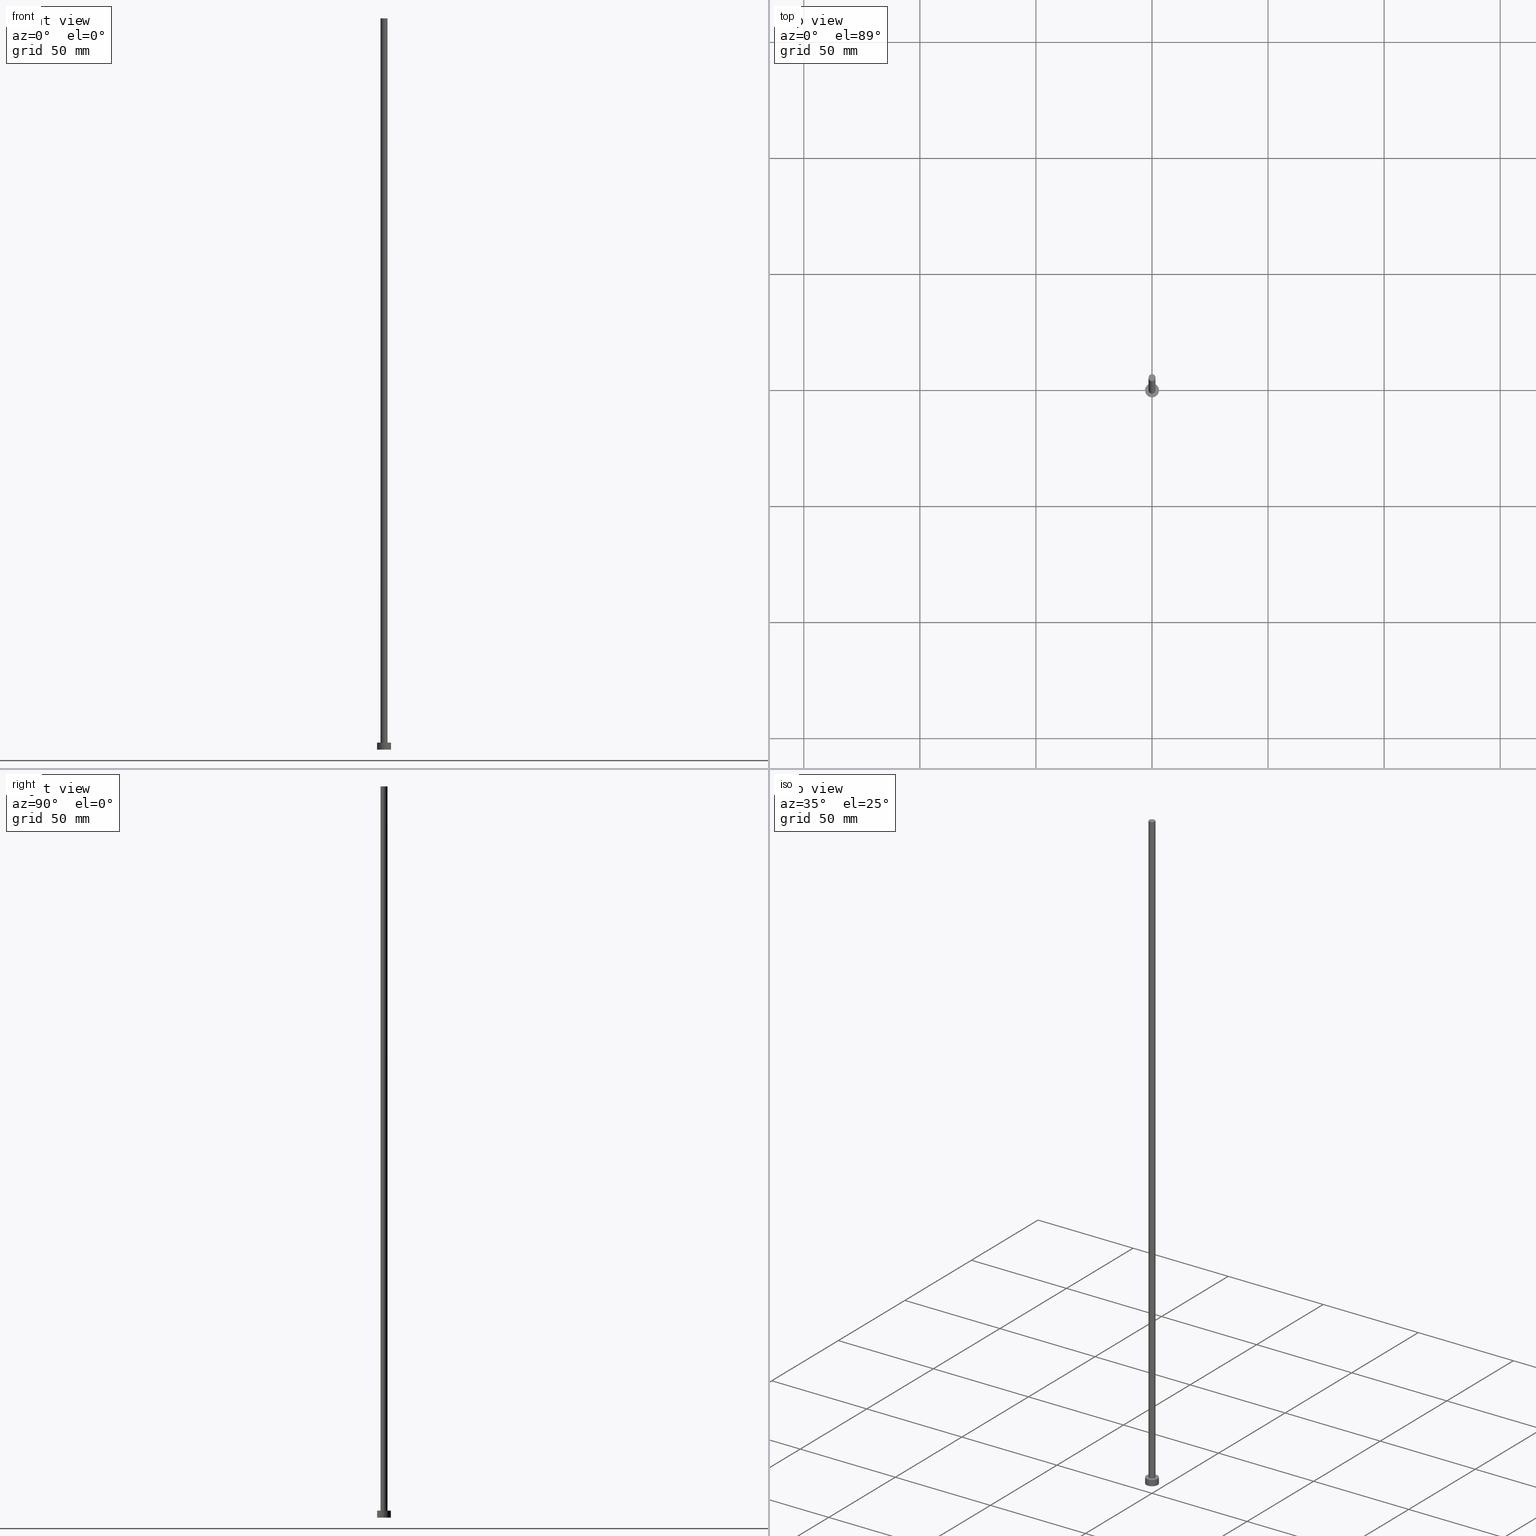
[diagram: canonical four-view strip — front | top / right | iso, engineering-drawing reading convention]
A machine part, canonical four-view strip (front | top / right | iso — engineering-drawing reading convention). The complete STEP part file that produces these views, byte-faithful:
ISO-10303-21;
HEADER;
FILE_DESCRIPTION (( 'STEP AP203' ),
    '1' );
FILE_NAME ('9875.STEP',
    '2023-02-13T15:37:10',
    ( '' ),
    ( '' ),
    'SwSTEP 2.0',
    'SolidWorks 2019',
    '' );
FILE_SCHEMA (( 'CONFIG_CONTROL_DESIGN' ));
ENDSEC;

DATA;
#1 = APPROVAL_STATUS ( 'not_yet_approved' ) ;
#2 = VERTEX_POINT ( 'NONE', #97 ) ;
#3 = DATE_AND_TIME ( #170, #116 ) ;
#4 = EDGE_LOOP ( 'NONE', ( #154, #193, #153, #115 ) ) ;
#5 = CC_DESIGN_PERSON_AND_ORGANIZATION_ASSIGNMENT ( #28, #25, ( #227 ) ) ;
#6 = CARTESIAN_POINT ( 'NONE',  ( -1.500000000000000222, 0.000000000000000000, 3.000000000000000000 ) ) ;
#7 = AXIS2_PLACEMENT_3D ( 'NONE', #183, #66, #200 ) ;
#8 = LOCAL_TIME ( 16, 37, 10.00000000000000000, #229 ) ;
#9 = DIRECTION ( 'NONE',  ( -1.000000000000000000, 0.000000000000000000, 0.000000000000000000 ) ) ;
#10 = CARTESIAN_POINT ( 'NONE',  ( 0.000000000000000000, 0.000000000000000000, 3.000000000000000000 ) ) ;
#11 = CIRCLE ( 'NONE', #149, 1.500000000000000222 ) ;
#12 = CARTESIAN_POINT ( 'NONE',  ( 3.000000000000000444, 3.673940397442060361E-16, 3.000000000000000000 ) ) ;
#13 = DIRECTION ( 'NONE',  ( -0.000000000000000000, -0.000000000000000000, -1.000000000000000000 ) ) ;
#14 = LINE ( 'NONE', #206, #217 ) ;
#15 =( NAMED_UNIT ( * ) PLANE_ANGLE_UNIT ( ) SI_UNIT ( $, .RADIAN. ) );
#16 = ORIENTED_EDGE ( 'NONE', *, *, #196, .F. ) ;
#17 = PLANE ( 'NONE',  #42 ) ;
#18 = ORIENTED_EDGE ( 'NONE', *, *, #241, .F. ) ;
#19 = ADVANCED_FACE ( 'NONE', ( #221 ), #79, .T. ) ;
#20 = DIRECTION ( 'NONE',  ( 1.000000000000000000, 0.000000000000000000, 0.000000000000000000 ) ) ;
#21 = CARTESIAN_POINT ( 'NONE',  ( -1.500000000000000222, 0.000000000000000000, 315.0000000000000000 ) ) ;
#22 = AXIS2_PLACEMENT_3D ( 'NONE', #50, #223, #103 ) ;
#23 = EDGE_CURVE ( 'NONE', #45, #208, #11, .T. ) ;
#24 = ORIENTED_EDGE ( 'NONE', *, *, #253, .T. ) ;
#25 = PERSON_AND_ORGANIZATION_ROLE ( 'creator' ) ;
#26 = SHAPE_DEFINITION_REPRESENTATION ( #109, #90 ) ;
#27 = VERTEX_POINT ( 'NONE', #201 ) ;
#28 = PERSON_AND_ORGANIZATION ( #86, #43 ) ;
#29 = CC_DESIGN_DATE_AND_TIME_ASSIGNMENT ( #127, #184, ( #222 ) ) ;
#30 = CARTESIAN_POINT ( 'NONE',  ( 0.000000000000000000, 0.000000000000000000, 315.0000000000000000 ) ) ;
#31 =( GEOMETRIC_REPRESENTATION_CONTEXT ( 3 ) GLOBAL_UNCERTAINTY_ASSIGNED_CONTEXT ( ( #244 ) ) GLOBAL_UNIT_ASSIGNED_CONTEXT ( ( #189, #15, #251 ) ) REPRESENTATION_CONTEXT ( 'NONE', 'WORKASPACE' ) );
#32 = FACE_OUTER_BOUND ( 'NONE', #96, .T. ) ;
#33 = DIRECTION ( 'NONE',  ( 1.000000000000000000, 0.000000000000000000, 0.000000000000000000 ) ) ;
#34 = FACE_OUTER_BOUND ( 'NONE', #71, .T. ) ;
#35 = FACE_OUTER_BOUND ( 'NONE', #137, .T. ) ;
#36 = EDGE_CURVE ( 'NONE', #95, #2, #181, .T. ) ;
#37 = CALENDAR_DATE ( 2023, 13, 2 ) ;
#38 = EDGE_LOOP ( 'NONE', ( #252, #24, #238, #177 ) ) ;
#39 = DIRECTION ( 'NONE',  ( 0.000000000000000000, 0.000000000000000000, 1.000000000000000000 ) ) ;
#40 = AXIS2_PLACEMENT_3D ( 'NONE', #119, #106, #69 ) ;
#41 = CIRCLE ( 'NONE', #169, 1.500000000000000222 ) ;
#42 = AXIS2_PLACEMENT_3D ( 'NONE', #112, #75, #70 ) ;
#43 = ORGANIZATION ( 'NEUR�EN�', 'NEUR�EN�', '' ) ;
#44 = ORIENTED_EDGE ( 'NONE', *, *, #82, .F. ) ;
#45 = VERTEX_POINT ( 'NONE', #6 ) ;
#46 = ADVANCED_FACE ( 'NONE', ( #35 ), #139, .T. ) ;
#47 = EDGE_CURVE ( 'NONE', #2, #131, #52, .T. ) ;
#48 = AXIS2_PLACEMENT_3D ( 'NONE', #219, #142, #9 ) ;
#49 = LOCAL_TIME ( 16, 37, 10.00000000000000000, #65 ) ;
#50 = CARTESIAN_POINT ( 'NONE',  ( 0.000000000000000000, 0.000000000000000000, 3.000000000000000000 ) ) ;
#51 = CARTESIAN_POINT ( 'NONE',  ( 0.000000000000000000, 0.000000000000000000, 3.000000000000000000 ) ) ;
#52 = LINE ( 'NONE', #162, #161 ) ;
#53 = CARTESIAN_POINT ( 'NONE',  ( 0.000000000000000000, 0.000000000000000000, 315.0000000000000000 ) ) ;
#54 = DIRECTION ( 'NONE',  ( -1.000000000000000000, 0.000000000000000000, 0.000000000000000000 ) ) ;
#55 = CC_DESIGN_PERSON_AND_ORGANIZATION_ASSIGNMENT ( #114, #190, ( #222 ) ) ;
#56 = PERSON_AND_ORGANIZATION ( #86, #43 ) ;
#57 = CALENDAR_DATE ( 2023, 13, 2 ) ;
#58 = ADVANCED_FACE ( 'NONE', ( #34 ), #140, .T. ) ;
#59 = COORDINATED_UNIVERSAL_TIME_OFFSET ( 1, 0, .AHEAD. ) ;
#60 = APPROVAL_ROLE ( '' ) ;
#61 = PERSON_AND_ORGANIZATION_ROLE ( 'classification_officer' ) ;
#62 = EDGE_CURVE ( 'NONE', #27, #209, #41, .T. ) ;
#63 = DATE_AND_TIME ( #192, #233 ) ;
#64 = DATE_TIME_ROLE ( 'classification_date' ) ;
#65 = COORDINATED_UNIVERSAL_TIME_OFFSET ( 1, 0, .AHEAD. ) ;
#66 = DIRECTION ( 'NONE',  ( 0.000000000000000000, 0.000000000000000000, 1.000000000000000000 ) ) ;
#67 = DIRECTION ( 'NONE',  ( -1.000000000000000000, 0.000000000000000000, 0.000000000000000000 ) ) ;
#68 = CARTESIAN_POINT ( 'NONE',  ( -1.500000000000000222, 0.000000000000000000, 315.0000000000000000 ) ) ;
#69 = DIRECTION ( 'NONE',  ( 1.000000000000000000, 0.000000000000000000, 0.000000000000000000 ) ) ;
#70 = DIRECTION ( 'NONE',  ( 1.000000000000000000, 0.000000000000000000, -0.000000000000000000 ) ) ;
#71 = EDGE_LOOP ( 'NONE', ( #145, #172, #117, #126 ) ) ;
#72 = FACE_BOUND ( 'NONE', #168, .T. ) ;
#73 = ORIENTED_EDGE ( 'NONE', *, *, #196, .T. ) ;
#74 = AXIS2_PLACEMENT_3D ( 'NONE', #10, #160, #20 ) ;
#75 = DIRECTION ( 'NONE',  ( 0.000000000000000000, 0.000000000000000000, 1.000000000000000000 ) ) ;
#76 = APPROVAL_PERSON_ORGANIZATION ( #133, #205, #155 ) ;
#77 = EDGE_LOOP ( 'NONE', ( #240, #98 ) ) ;
#78 = AXIS2_PLACEMENT_3D ( 'NONE', #198, #178, #54 ) ;
#79 = CYLINDRICAL_SURFACE ( 'NONE', #89, 1.500000000000000222 ) ;
#80 = PLANE ( 'NONE',  #84 ) ;
#81 = CARTESIAN_POINT ( 'NONE',  ( 0.000000000000000000, 0.000000000000000000, 3.000000000000000000 ) ) ;
#82 = EDGE_CURVE ( 'NONE', #208, #45, #92, .T. ) ;
#83 = CYLINDRICAL_SURFACE ( 'NONE', #48, 3.000000000000000444 ) ;
#84 = AXIS2_PLACEMENT_3D ( 'NONE', #53, #159, #243 ) ;
#85 = CC_DESIGN_APPROVAL ( #175, ( #222 ) ) ;
#86 = PERSON ( 'NEUR�EN�', 'NEUR�EN�', 'NEUR�EN�', ('NEUR�EN�'), ('NEUR�EN�'), ('NEUR�EN�') ) ;
#87 = CARTESIAN_POINT ( 'NONE',  ( 0.000000000000000000, 0.000000000000000000, 0.000000000000000000 ) ) ;
#88 = DIRECTION ( 'NONE',  ( -0.000000000000000000, -0.000000000000000000, -1.000000000000000000 ) ) ;
#89 = AXIS2_PLACEMENT_3D ( 'NONE', #30, #158, #67 ) ;
#90 = ADVANCED_BREP_SHAPE_REPRESENTATION ( '9875', ( #211, #245 ), #31 ) ;
#91 = FACE_OUTER_BOUND ( 'NONE', #235, .T. ) ;
#92 = CIRCLE ( 'NONE', #22, 1.500000000000000222 ) ;
#93 = APPROVAL_ROLE ( '' ) ;
#94 = PERSON_AND_ORGANIZATION ( #86, #43 ) ;
#95 = VERTEX_POINT ( 'NONE', #12 ) ;
#96 = EDGE_LOOP ( 'NONE', ( #18, #197 ) ) ;
#97 = CARTESIAN_POINT ( 'NONE',  ( -3.000000000000000444, 0.000000000000000000, 3.000000000000000000 ) ) ;
#98 = ORIENTED_EDGE ( 'NONE', *, *, #62, .T. ) ;
#99 = CC_DESIGN_SECURITY_CLASSIFICATION ( #255, ( #227 ) ) ;
#100 = DIRECTION ( 'NONE',  ( 1.000000000000000000, 0.000000000000000000, 0.000000000000000000 ) ) ;
#101 = CC_DESIGN_APPROVAL ( #205, ( #255 ) ) ;
#102 = DIRECTION ( 'NONE',  ( 0.000000000000000000, 0.000000000000000000, 1.000000000000000000 ) ) ;
#103 = DIRECTION ( 'NONE',  ( 1.000000000000000000, 0.000000000000000000, 0.000000000000000000 ) ) ;
#104 = EDGE_CURVE ( 'NONE', #209, #45, #120, .T. ) ;
#105 = AXIS2_PLACEMENT_3D ( 'NONE', #108, #179, #242 ) ;
#106 = DIRECTION ( 'NONE',  ( 0.000000000000000000, 0.000000000000000000, 1.000000000000000000 ) ) ;
#107 = APPROVAL_PERSON_ORGANIZATION ( #56, #175, #93 ) ;
#108 = CARTESIAN_POINT ( 'NONE',  ( 0.000000000000000000, 0.000000000000000000, 3.000000000000000000 ) ) ;
#109 = PRODUCT_DEFINITION_SHAPE ( 'NONE', 'NONE',  #222 ) ;
#110 = APPROVAL_STATUS ( 'not_yet_approved' ) ;
#111 = DESIGN_CONTEXT ( 'detailed design', #185, 'design' ) ;
#112 = CARTESIAN_POINT ( 'NONE',  ( 0.000000000000000000, 0.000000000000000000, 3.000000000000000000 ) ) ;
#113 = APPLICATION_CONTEXT ( 'configuration controlled 3d designs of mechanical parts and assemblies' ) ;
#114 = PERSON_AND_ORGANIZATION ( #86, #43 ) ;
#115 = ORIENTED_EDGE ( 'NONE', *, *, #23, .T. ) ;
#116 = LOCAL_TIME ( 16, 37, 10.00000000000000000, #130 ) ;
#117 = ORIENTED_EDGE ( 'NONE', *, *, #82, .T. ) ;
#118 = PERSON_AND_ORGANIZATION_ROLE ( 'design_supplier' ) ;
#119 = CARTESIAN_POINT ( 'NONE',  ( 0.000000000000000000, 0.000000000000000000, 315.0000000000000000 ) ) ;
#120 = LINE ( 'NONE', #68, #176 ) ;
#121 = DIRECTION ( 'NONE',  ( -0.000000000000000000, -0.000000000000000000, -1.000000000000000000 ) ) ;
#122 = FACE_OUTER_BOUND ( 'NONE', #77, .T. ) ;
#123 = CARTESIAN_POINT ( 'NONE',  ( 0.000000000000000000, 0.000000000000000000, 315.0000000000000000 ) ) ;
#124 = CC_DESIGN_APPROVAL ( #138, ( #227 ) ) ;
#125 = APPLICATION_PROTOCOL_DEFINITION ( 'international standard', 'config_control_design', 1994, #185 ) ;
#126 = ORIENTED_EDGE ( 'NONE', *, *, #104, .F. ) ;
#127 = DATE_AND_TIME ( #57, #8 ) ;
#128 = APPLICATION_PROTOCOL_DEFINITION ( 'international standard', 'config_control_design', 1994, #113 ) ;
#129 = CARTESIAN_POINT ( 'NONE',  ( 1.500000000000000222, 1.836970198721030181E-16, 3.000000000000000000 ) ) ;
#130 = COORDINATED_UNIVERSAL_TIME_OFFSET ( 1, 0, .AHEAD. ) ;
#131 = VERTEX_POINT ( 'NONE', #218 ) ;
#132 = CC_DESIGN_DATE_AND_TIME_ASSIGNMENT ( #171, #64, ( #255 ) ) ;
#133 = PERSON_AND_ORGANIZATION ( #86, #43 ) ;
#134 = LOCAL_TIME ( 16, 37, 10.00000000000000000, #59 ) ;
#135 = ORIENTED_EDGE ( 'NONE', *, *, #47, .T. ) ;
#136 = EDGE_CURVE ( 'NONE', #209, #27, #224, .T. ) ;
#137 = EDGE_LOOP ( 'NONE', ( #239, #16, #135, #214 ) ) ;
#138 = APPROVAL ( #234, 'NEUR�EN�' ) ;
#139 = CYLINDRICAL_SURFACE ( 'NONE', #204, 3.000000000000000444 ) ;
#140 = CYLINDRICAL_SURFACE ( 'NONE', #78, 1.500000000000000222 ) ;
#141 = DIRECTION ( 'NONE',  ( 0.000000000000000000, 0.000000000000000000, 1.000000000000000000 ) ) ;
#142 = DIRECTION ( 'NONE',  ( -0.000000000000000000, -0.000000000000000000, -1.000000000000000000 ) ) ;
#143 = CARTESIAN_POINT ( 'NONE',  ( 3.000000000000000444, 3.673940397442060361E-16, 0.000000000000000000 ) ) ;
#144 = PRODUCT ( '9875', '9875', '', ( #207 ) ) ;
#145 = ORIENTED_EDGE ( 'NONE', *, *, #62, .F. ) ;
#146 = AXIS2_PLACEMENT_3D ( 'NONE', #87, #102, #164 ) ;
#147 = APPROVAL_PERSON_ORGANIZATION ( #254, #138, #60 ) ;
#148 = ADVANCED_FACE ( 'NONE', ( #247 ), #83, .T. ) ;
#149 = AXIS2_PLACEMENT_3D ( 'NONE', #81, #141, #100 ) ;
#150 = PERSON_AND_ORGANIZATION ( #86, #43 ) ;
#151 = DATE_AND_TIME ( #37, #134 ) ;
#152 = ORIENTED_EDGE ( 'NONE', *, *, #23, .F. ) ;
#153 = ORIENTED_EDGE ( 'NONE', *, *, #104, .T. ) ;
#154 = ORIENTED_EDGE ( 'NONE', *, *, #202, .F. ) ;
#155 = APPROVAL_ROLE ( '' ) ;
#156 = CALENDAR_DATE ( 2023, 13, 2 ) ;
#157 = ORIENTED_EDGE ( 'NONE', *, *, #36, .T. ) ;
#158 = DIRECTION ( 'NONE',  ( -0.000000000000000000, -0.000000000000000000, -1.000000000000000000 ) ) ;
#159 = DIRECTION ( 'NONE',  ( 0.000000000000000000, 0.000000000000000000, 1.000000000000000000 ) ) ;
#160 = DIRECTION ( 'NONE',  ( 0.000000000000000000, 0.000000000000000000, 1.000000000000000000 ) ) ;
#161 = VECTOR ( 'NONE', #121, 1000.000000000000000 ) ;
#162 = CARTESIAN_POINT ( 'NONE',  ( -3.000000000000000444, 0.000000000000000000, 3.000000000000000000 ) ) ;
#163 = ADVANCED_FACE ( 'NONE', ( #122 ), #80, .T. ) ;
#164 = DIRECTION ( 'NONE',  ( 1.000000000000000000, 0.000000000000000000, -0.000000000000000000 ) ) ;
#165 = CARTESIAN_POINT ( 'NONE',  ( 0.000000000000000000, 0.000000000000000000, 0.000000000000000000 ) ) ;
#166 = DIRECTION ( 'NONE',  ( 1.000000000000000000, 0.000000000000000000, 0.000000000000000000 ) ) ;
#167 = CARTESIAN_POINT ( 'NONE',  ( 0.000000000000000000, 0.000000000000000000, 0.000000000000000000 ) ) ;
#168 = EDGE_LOOP ( 'NONE', ( #152, #44 ) ) ;
#169 = AXIS2_PLACEMENT_3D ( 'NONE', #123, #203, #33 ) ;
#170 = CALENDAR_DATE ( 2023, 13, 2 ) ;
#171 = DATE_AND_TIME ( #156, #49 ) ;
#172 = ORIENTED_EDGE ( 'NONE', *, *, #202, .T. ) ;
#173 = CIRCLE ( 'NONE', #195, 3.000000000000000444 ) ;
#174 = PERSON_AND_ORGANIZATION ( #86, #43 ) ;
#175 = APPROVAL ( #110, 'NEUR�EN�' ) ;
#176 = VECTOR ( 'NONE', #180, 1000.000000000000000 ) ;
#177 = ORIENTED_EDGE ( 'NONE', *, *, #47, .F. ) ;
#178 = DIRECTION ( 'NONE',  ( -0.000000000000000000, -0.000000000000000000, -1.000000000000000000 ) ) ;
#179 = DIRECTION ( 'NONE',  ( 0.000000000000000000, 0.000000000000000000, 1.000000000000000000 ) ) ;
#180 = DIRECTION ( 'NONE',  ( -0.000000000000000000, -0.000000000000000000, -1.000000000000000000 ) ) ;
#181 = CIRCLE ( 'NONE', #105, 3.000000000000000444 ) ;
#182 = EDGE_CURVE ( 'NONE', #194, #131, #226, .T. ) ;
#183 = CARTESIAN_POINT ( 'NONE',  ( 0.000000000000000000, 0.000000000000000000, 0.000000000000000000 ) ) ;
#184 = DATE_TIME_ROLE ( 'creation_date' ) ;
#185 = APPLICATION_CONTEXT ( 'configuration controlled 3d designs of mechanical parts and assemblies' ) ;
#186 = LINE ( 'NONE', #248, #212 ) ;
#187 = ADVANCED_FACE ( 'NONE', ( #32 ), #246, .F. ) ;
#188 = CLOSED_SHELL ( 'NONE', ( #58, #148, #46, #228, #187, #19, #163 ) ) ;
#189 =( LENGTH_UNIT ( ) NAMED_UNIT ( * ) SI_UNIT ( .MILLI., .METRE. ) );
#190 = PERSON_AND_ORGANIZATION_ROLE ( 'creator' ) ;
#191 = SECURITY_CLASSIFICATION_LEVEL ( 'unclassified' ) ;
#192 = CALENDAR_DATE ( 2023, 13, 2 ) ;
#193 = ORIENTED_EDGE ( 'NONE', *, *, #136, .F. ) ;
#194 = VERTEX_POINT ( 'NONE', #143 ) ;
#195 = AXIS2_PLACEMENT_3D ( 'NONE', #165, #39, #230 ) ;
#196 = EDGE_CURVE ( 'NONE', #2, #95, #232, .T. ) ;
#197 = ORIENTED_EDGE ( 'NONE', *, *, #182, .F. ) ;
#198 = CARTESIAN_POINT ( 'NONE',  ( 0.000000000000000000, 0.000000000000000000, 315.0000000000000000 ) ) ;
#199 = CC_DESIGN_PERSON_AND_ORGANIZATION_ASSIGNMENT ( #174, #118, ( #227 ) ) ;
#200 = DIRECTION ( 'NONE',  ( 1.000000000000000000, 0.000000000000000000, 0.000000000000000000 ) ) ;
#201 = CARTESIAN_POINT ( 'NONE',  ( 1.500000000000000222, 1.836970198721030181E-16, 315.0000000000000000 ) ) ;
#202 = EDGE_CURVE ( 'NONE', #27, #208, #14, .T. ) ;
#203 = DIRECTION ( 'NONE',  ( 0.000000000000000000, 0.000000000000000000, 1.000000000000000000 ) ) ;
#204 = AXIS2_PLACEMENT_3D ( 'NONE', #51, #13, #220 ) ;
#205 = APPROVAL ( #1, 'NEUR�EN�' ) ;
#206 = CARTESIAN_POINT ( 'NONE',  ( 1.500000000000000222, 1.836970198721030181E-16, 315.0000000000000000 ) ) ;
#207 = MECHANICAL_CONTEXT ( 'NONE', #113, 'mechanical' ) ;
#208 = VERTEX_POINT ( 'NONE', #129 ) ;
#209 = VERTEX_POINT ( 'NONE', #21 ) ;
#210 = DIRECTION ( 'NONE',  ( -0.000000000000000000, -0.000000000000000000, -1.000000000000000000 ) ) ;
#211 = MANIFOLD_SOLID_BREP ( 'P�idat vysunut�m3', #188 ) ;
#212 = VECTOR ( 'NONE', #210, 1000.000000000000000 ) ;
#213 = APPROVAL_DATE_TIME ( #63, #205 ) ;
#214 = ORIENTED_EDGE ( 'NONE', *, *, #241, .T. ) ;
#215 = APPROVAL_DATE_TIME ( #3, #138 ) ;
#216 = PRODUCT_RELATED_PRODUCT_CATEGORY ( 'detail', '', ( #144 ) ) ;
#217 = VECTOR ( 'NONE', #88, 1000.000000000000000 ) ;
#218 = CARTESIAN_POINT ( 'NONE',  ( -3.000000000000000444, 0.000000000000000000, 0.000000000000000000 ) ) ;
#219 = CARTESIAN_POINT ( 'NONE',  ( 0.000000000000000000, 0.000000000000000000, 3.000000000000000000 ) ) ;
#220 = DIRECTION ( 'NONE',  ( -1.000000000000000000, 0.000000000000000000, 0.000000000000000000 ) ) ;
#221 = FACE_OUTER_BOUND ( 'NONE', #4, .T. ) ;
#222 = PRODUCT_DEFINITION ( 'NEZN�M�', '', #227, #111 ) ;
#223 = DIRECTION ( 'NONE',  ( 0.000000000000000000, 0.000000000000000000, 1.000000000000000000 ) ) ;
#224 = CIRCLE ( 'NONE', #40, 1.500000000000000222 ) ;
#225 = DIRECTION ( 'NONE',  ( 0.000000000000000000, 0.000000000000000000, 1.000000000000000000 ) ) ;
#226 = CIRCLE ( 'NONE', #7, 3.000000000000000444 ) ;
#227 = PRODUCT_DEFINITION_FORMATION_WITH_SPECIFIED_SOURCE ( 'LIBOVOLN�', '', #144, .NOT_KNOWN. ) ;
#228 = ADVANCED_FACE ( 'NONE', ( #72, #91 ), #17, .T. ) ;
#229 = COORDINATED_UNIVERSAL_TIME_OFFSET ( 1, 0, .AHEAD. ) ;
#230 = DIRECTION ( 'NONE',  ( 1.000000000000000000, 0.000000000000000000, 0.000000000000000000 ) ) ;
#231 = PERSON_AND_ORGANIZATION_ROLE ( 'design_owner' ) ;
#232 = CIRCLE ( 'NONE', #74, 3.000000000000000444 ) ;
#233 = LOCAL_TIME ( 16, 37, 10.00000000000000000, #237 ) ;
#234 = APPROVAL_STATUS ( 'not_yet_approved' ) ;
#235 = EDGE_LOOP ( 'NONE', ( #73, #157 ) ) ;
#236 = CC_DESIGN_PERSON_AND_ORGANIZATION_ASSIGNMENT ( #94, #61, ( #255 ) ) ;
#237 = COORDINATED_UNIVERSAL_TIME_OFFSET ( 1, 0, .AHEAD. ) ;
#238 = ORIENTED_EDGE ( 'NONE', *, *, #182, .T. ) ;
#239 = ORIENTED_EDGE ( 'NONE', *, *, #253, .F. ) ;
#240 = ORIENTED_EDGE ( 'NONE', *, *, #136, .T. ) ;
#241 = EDGE_CURVE ( 'NONE', #131, #194, #173, .T. ) ;
#242 = DIRECTION ( 'NONE',  ( 1.000000000000000000, 0.000000000000000000, 0.000000000000000000 ) ) ;
#243 = DIRECTION ( 'NONE',  ( 1.000000000000000000, 0.000000000000000000, -0.000000000000000000 ) ) ;
#244 = UNCERTAINTY_MEASURE_WITH_UNIT (LENGTH_MEASURE( 1.000000000000000082E-05 ), #189, 'distance_accuracy_value', 'NONE');
#245 = AXIS2_PLACEMENT_3D ( 'NONE', #167, #225, #166 ) ;
#246 = PLANE ( 'NONE',  #146 ) ;
#247 = FACE_OUTER_BOUND ( 'NONE', #38, .T. ) ;
#248 = CARTESIAN_POINT ( 'NONE',  ( 3.000000000000000444, 3.673940397442060361E-16, 3.000000000000000000 ) ) ;
#249 = CC_DESIGN_PERSON_AND_ORGANIZATION_ASSIGNMENT ( #150, #231, ( #144 ) ) ;
#250 = APPROVAL_DATE_TIME ( #151, #175 ) ;
#251 =( NAMED_UNIT ( * ) SI_UNIT ( $, .STERADIAN. ) SOLID_ANGLE_UNIT ( ) );
#252 = ORIENTED_EDGE ( 'NONE', *, *, #36, .F. ) ;
#253 = EDGE_CURVE ( 'NONE', #95, #194, #186, .T. ) ;
#254 = PERSON_AND_ORGANIZATION ( #86, #43 ) ;
#255 = SECURITY_CLASSIFICATION ( '', '', #191 ) ;
ENDSEC;
END-ISO-10303-21;
